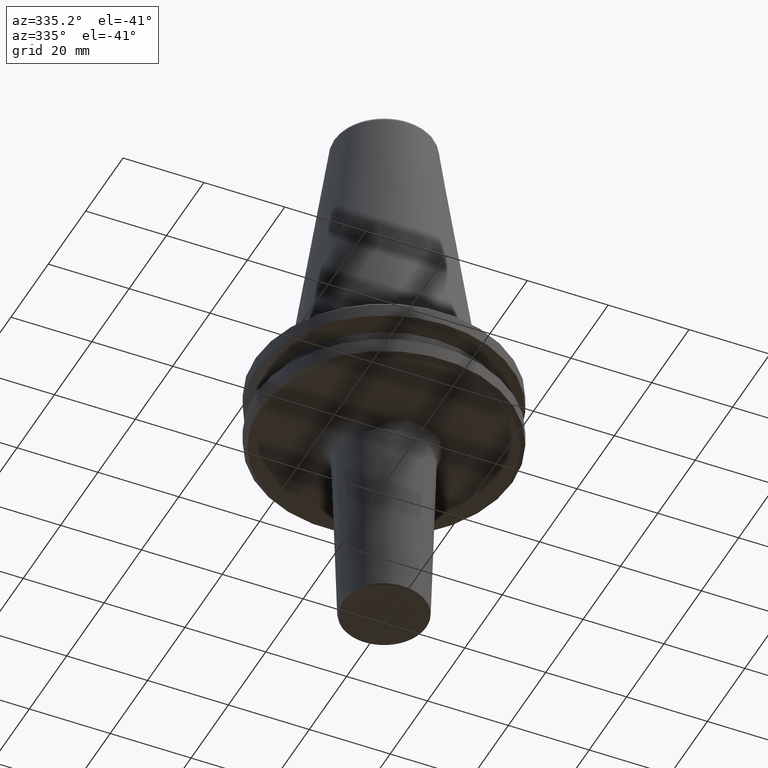
[diagram: clean part render]
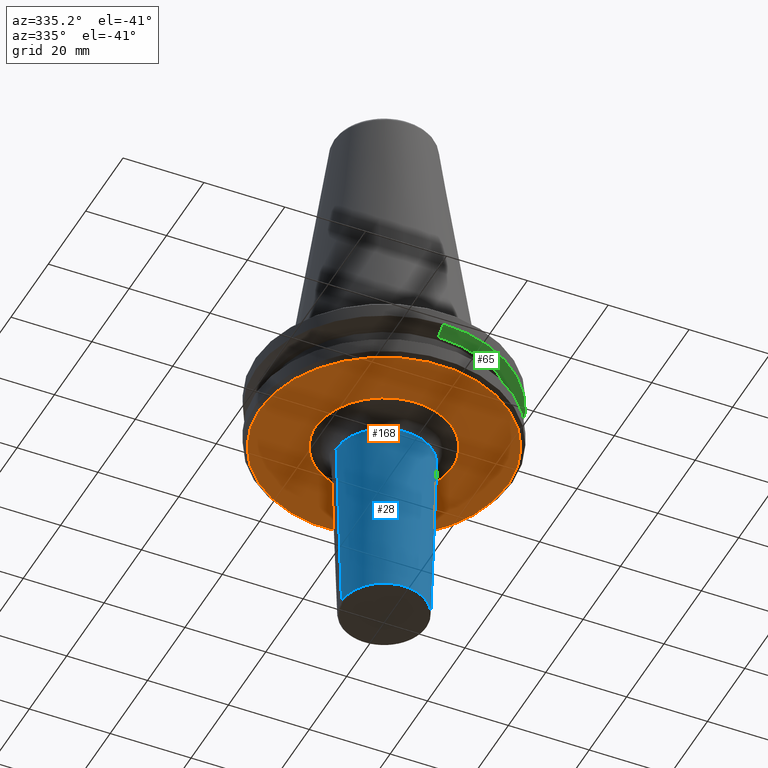
[diagram: same view with three faces highlighted in distinct colors, each labeled with its STEP entity id]
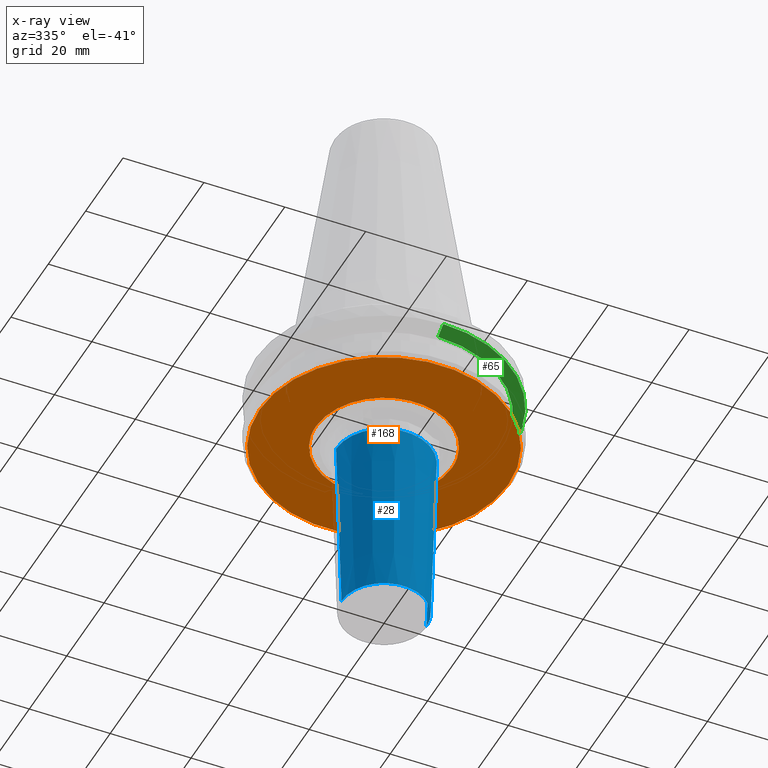
[diagram: x-ray of the same camera — body ghosted, the three highlighted faces saturated]
A machine part, auxiliary view with three faces highlighted in distinct colors.
The next image is the same camera in x-ray (body ghosted, the three faces saturated) — at least one of them is partly hidden behind the body in this view.
Their STEP definitions:

[orange] entity #168 — the highlighted planar face has unit normal (0, 0, -1).
#2 = CARTESIAN_POINT ( 'NONE',  ( -5.756851245257653500, 15.83952898316190900, -19.10000000000000100 ) ) ;
#7 = CARTESIAN_POINT ( 'NONE',  ( -5.307316266697082300, 15.99889640963695700, -19.10000000000000100 ) ) ;
#9 = CARTESIAN_POINT ( 'NONE',  ( -4.398759286971055000, 16.28421987078366900, -19.10000000000001200 ) ) ;
#10 = CARTESIAN_POINT ( 'NONE',  ( -3.603732694168920100, 16.47150616581784600, -19.10000000000000500 ) ) ;
#21 = CARTESIAN_POINT ( 'NONE',  ( -3.032908886920591100, 16.57711997429286700, -19.10000000000000500 ) ) ;
#25 = CARTESIAN_POINT ( 'NONE',  ( -3.003109251472878300, 16.58254039698522700, -19.10000000000000100 ) ) ;
#36 = CARTESIAN_POINT ( 'NONE',  ( -2.939707571947320500, 16.59389855350475100, -19.10000000000000500 ) ) ;
#41 = CARTESIAN_POINT ( 'NONE',  ( -2.844580879595744300, 16.61066094514205100, -19.10000000000000100 ) ) ;
#53 = CARTESIAN_POINT ( 'NONE',  ( -2.622449385999404500, 16.64784929030205200, -19.10000000000000500 ) ) ;
#57 = CARTESIAN_POINT ( 'NONE',  ( -2.177509553036062000, 16.71453037264713300, -19.10000000000000900 ) ) ;
#58 = CARTESIAN_POINT ( 'NONE',  ( -1.284922504026729600, 16.81711010543762400, -19.10000000000000500 ) ) ;
#60 = CARTESIAN_POINT ( 'NONE',  ( -0.5152066624484736800, 16.85226570743007500, -19.10000000000000500 ) ) ;
#63 = CARTESIAN_POINT ( 'NONE',  ( 1.030413324896954300, 16.85221706707289300, -19.10000000000000500 ) ) ;
#73 = CARTESIAN_POINT ( 'NONE',  ( 2.053281699854323500, 16.75843634596672200, -19.10000000000000900 ) ) ;
#78 = CARTESIAN_POINT ( 'NONE',  ( 3.098149416000228800, 16.56504711767866300, -19.10000000000000500 ) ) ;
#81 = CARTESIAN_POINT ( 'NONE',  ( 3.133655645369320700, 16.55837085459608100, -19.10000000000000900 ) ) ;
#84 = CARTESIAN_POINT ( 'NONE',  ( 3.200737856740124800, 16.54553656492364800, -19.10000000000000500 ) ) ;
#85 = CARTESIAN_POINT ( 'NONE',  ( 3.301274497733011100, 16.52598738347024100, -19.10000000000000500 ) ) ;
#90 = CARTESIAN_POINT ( 'NONE',  ( 3.535253260939868800, 16.47828839813239900, -19.10000000000000500 ) ) ;
#92 = CARTESIAN_POINT ( 'NONE',  ( 4.000783857580722200, 16.37455351300366100, -19.10000000000000900 ) ) ;
#98 = CARTESIAN_POINT ( 'NONE',  ( 4.922137331770981600, 16.13373608493400700, -19.10000000000000900 ) ) ;
#102 = CARTESIAN_POINT ( 'NONE',  ( -16.37455351300720700, 4.000783857569661700, -19.10000000000000900 ) ) ;
#104 = CARTESIAN_POINT ( 'NONE',  ( 5.695227076920157400, 15.87015373319630700, -19.10000000000000500 ) ) ;
#106 = CARTESIAN_POINT ( 'NONE',  ( 6.234973683326794400, 15.65645384439129700, -19.10000000000000500 ) ) ;
#108 = CARTESIAN_POINT ( 'NONE',  ( -16.85224949397768400, 1.030944126964920700, -19.10000000000000500 ) ) ;
#112 = CARTESIAN_POINT ( 'NONE',  ( 6.269379510449287100, 15.64271166299225500, -19.10000000000000500 ) ) ;
#115 = CARTESIAN_POINT ( 'NONE',  ( 6.335379405098112000, 15.61610053222299800, -19.09999999999999800 ) ) ;
#119 = VERTEX_POINT ( 'NONE', #1488 ) ;
#121 = CARTESIAN_POINT ( 'NONE',  ( 6.434223514220820000, 15.57588546839331800, -19.10000000000000100 ) ) ;
#127 = CARTESIAN_POINT ( 'NONE',  ( 6.663769638886750000, 15.47996174572681700, -19.10000000000000100 ) ) ;
#128 = CARTESIAN_POINT ( 'NONE',  ( 7.118501368403774300, 15.27976000547149700, -19.10000000000000500 ) ) ;
#131 = CARTESIAN_POINT ( 'NONE',  ( -9.160872412643689300, 14.14503220573418200, -19.10000000000000900 ) ) ;
#133 = CARTESIAN_POINT ( 'NONE',  ( 8.010522748178427600, 14.84593934527155700, -19.10000000000000500 ) ) ;
#136 = CARTESIAN_POINT ( 'NONE',  ( 8.745211794969170800, 14.41680647134711200, -19.10000000000000900 ) ) ;
#139 = CARTESIAN_POINT ( 'NONE',  ( 9.281278226411329200, 14.06631351902723500, -19.10000000000000500 ) ) ;
#157 = CARTESIAN_POINT ( 'NONE',  ( 9.343174503052640700, 14.02528813480012100, -19.10000000000000500 ) ) ;
#162 = CARTESIAN_POINT ( 'NONE',  ( 9.463745020886250400, 13.94423174972567900, -19.10000000000000500 ) ) ;
#165 = CARTESIAN_POINT ( 'NONE',  ( -16.47828839813446700, 3.535253260933419700, -19.10000000000000900 ) ) ;
#167 = CARTESIAN_POINT ( 'NONE',  ( 9.643712102002062600, 13.82155983263558800, -19.10000000000000500 ) ) ;
#168 = ADVANCED_FACE ( 'NONE', ( #547, #280 ), #500, .T. ) ;
#169 = CARTESIAN_POINT ( 'NONE',  ( -5.980432856712331700, 15.75566884594895000, -19.10000000000000500 ) ) ;
#175 = CARTESIAN_POINT ( 'NONE',  ( 10.05741442183003400, 13.52771398307630000, -19.10000000000000500 ) ) ;
#184 = CARTESIAN_POINT ( 'NONE',  ( 10.85993558371700400, 12.90957677856141200, -19.10000000000000900 ) ) ;
#185 = DIRECTION ( 'NONE',  ( -1.000000000000000000, 0.0000000000000000000, -0.0000000000000000000 ) ) ;
#189 = CARTESIAN_POINT ( 'NONE',  ( 11.50515347487327300, 12.32755259401210200, -19.10000000000000100 ) ) ;
#192 = DIRECTION ( 'NONE',  ( 0.0000000000000000000, 0.0000000000000000000, -1.000000000000000000 ) ) ;
#193 = CARTESIAN_POINT ( 'NONE',  ( 12.73871273657100500, 11.09391449829334800, -19.10000000000000900 ) ) ;
#195 = CARTESIAN_POINT ( 'NONE',  ( -12.90957677853942300, 10.85993558374389400, -19.10000000000000500 ) ) ;
#197 = CARTESIAN_POINT ( 'NONE',  ( -13.94423174971988500, 9.463745020893332700, -19.10000000000000100 ) ) ;
#199 = CARTESIAN_POINT ( 'NONE',  ( 13.46885677499800600, 10.19520132063058600, -19.10000000000000500 ) ) ;
#209 = CARTESIAN_POINT ( 'NONE',  ( 14.14503220573349100, 9.160872412644034000, -19.10000000000000100 ) ) ;
#214 = CARTESIAN_POINT ( 'NONE',  ( 14.18278571764009800, 9.102306124253871600, -19.09999999999999800 ) ) ;
#218 = CARTESIAN_POINT ( 'NONE',  ( 14.25911700630278000, 8.982281348283406100, -19.10000000000000100 ) ) ;
#225 = CARTESIAN_POINT ( 'NONE',  ( 14.37241669071548600, 8.801628573687775500, -19.10000000000000500 ) ) ;
#227 = CARTESIAN_POINT ( 'NONE',  ( 14.62840188094256900, 8.375796158485167500, -19.10000000000000500 ) ) ;
#236 = CARTESIAN_POINT ( 'NONE',  ( -10.19520132063604100, 13.46885677498691800, -19.09999999999999800 ) ) ;
#239 = CARTESIAN_POINT ( 'NONE',  ( 15.10684930111993100, 7.506894230162042300, -19.10000000000000900 ) ) ;
#241 = CARTESIAN_POINT ( 'NONE',  ( 15.45947915794023700, 6.732571838025815900, -19.10000000000000100 ) ) ;
#242 = CARTESIAN_POINT ( 'NONE',  ( 15.68212100534480400, 6.170139635757690800, -19.10000000000000500 ) ) ;
#248 = CARTESIAN_POINT ( 'NONE',  ( 15.69407829061654900, 6.139654009584256200, -19.10000000000000500 ) ) ;
#250 = CARTESIAN_POINT ( 'NONE',  ( 15.71883383914912700, 6.075999430659587500, -19.10000000000000500 ) ) ;
#252 = CARTESIAN_POINT ( 'NONE',  ( 15.75566884594973700, 5.980432856713596500, -19.10000000000000900 ) ) ;
#254 = CARTESIAN_POINT ( 'NONE',  ( 15.83952898316339000, 5.756851245260016900, -19.10000000000000500 ) ) ;
#263 = CARTESIAN_POINT ( 'NONE',  ( 15.99889640963949400, 5.307316266701131500, -19.10000000000000900 ) ) ;
#266 = CARTESIAN_POINT ( 'NONE',  ( 16.28421987078704400, 4.398759286976441800, -19.10000000000000500 ) ) ;
#269 = CARTESIAN_POINT ( 'NONE',  ( 16.47150616581978300, 3.603732694171999800, -19.10000000000000500 ) ) ;
#270 = CARTESIAN_POINT ( 'NONE',  ( 16.57711997429274900, 3.032908886920399300, -19.10000000000000100 ) ) ;
#275 = CARTESIAN_POINT ( 'NONE',  ( 16.58253840197058100, 3.003120034169848700, -19.10000000000000100 ) ) ;
#280 = FACE_OUTER_BOUND ( 'NONE', #1441, .T. ) ;
#282 = CARTESIAN_POINT ( 'NONE',  ( 16.59389465847613800, 2.939728623879499700, -19.10000000000000500 ) ) ;
#285 = CARTESIAN_POINT ( 'NONE',  ( 16.61065429509322700, 2.844616821918979400, -19.10000000000000100 ) ) ;
#289 = CARTESIAN_POINT ( 'NONE',  ( 16.64783687687757000, 2.622516478336105000, -19.10000000000000100 ) ) ;
#292 = CARTESIAN_POINT ( 'NONE',  ( 16.71450909249086800, 2.177624568470404800, -19.10000000000000500 ) ) ;
#296 = CARTESIAN_POINT ( 'NONE',  ( 16.81708173189594300, 1.285075857939183900, -19.10000000000000500 ) ) ;
#317 = CARTESIAN_POINT ( 'NONE',  ( 16.85224949397768400, 0.0000000000000000000, -19.10000000000000500 ) ) ;
#331 = CARTESIAN_POINT ( 'NONE',  ( 16.85224949397768100, 0.5152942932555905100, -19.10000000000000100 ) ) ;
#345 = CARTESIAN_POINT ( 'NONE',  ( 16.85224949397768400, 0.0000000000000000000, -19.10000000000000500 ) ) ;
#373 = CARTESIAN_POINT ( 'NONE',  ( -14.41680647134501700, 8.745211794976144800, -19.10000000000000900 ) ) ;
#375 = CIRCLE ( 'NONE', #1341, 30.75000000000049700 ) ;
#412 = ORIENTED_EDGE ( 'NONE', *, *, #810, .T. ) ;
#458 = CARTESIAN_POINT ( 'NONE',  ( -14.84593934526788800, 8.010522748190627600, -19.10000000000000500 ) ) ;
#464 = CARTESIAN_POINT ( 'NONE',  ( -14.06631351902750100, 9.281278226410451600, -19.10000000000000500 ) ) ;
#500 = PLANE ( 'NONE',  #1054 ) ;
#514 = CARTESIAN_POINT ( 'NONE',  ( -15.61610053222249500, 6.335379405099785400, -19.10000000000000500 ) ) ;
#530 = CARTESIAN_POINT ( 'NONE',  ( -14.02528813479707100, 9.343174503056358700, -19.10000000000000900 ) ) ;
#543 = VERTEX_POINT ( 'NONE', #1372 ) ;
#547 = FACE_BOUND ( 'NONE', #1191, .T. ) ;
#558 = CARTESIAN_POINT ( 'NONE',  ( -8.982281348284111300, 14.25911700630401000, -19.10000000000000500 ) ) ;
#574 = CARTESIAN_POINT ( 'NONE',  ( -11.09391449831847600, 12.73871273654024900, -19.10000000000000500 ) ) ;
#577 = B_SPLINE_CURVE_WITH_KNOTS ( 'NONE', 3,
 ( #317, #331, #296, #292, #289, #285, #282, #275, #270, #269, #266, #263, #254, #252, #250, #248, #242, #241, #239, #227, #225, #218, #214, #209, #199, #193, #189, #184, #175, #167, #162, #157, #139, #136, #133, #128, #127, #121, #115, #112, #106, #104, #98, #92, #90, #85, #84, #81, #78, #73, #63, #60, #58, #57, #53, #41, #36, #25, #21, #10, #9, #7, #2, #169, #1131, #685, #1221, #798, #1101, #599, #1161, #558, #1075, #131, #236, #574, #1386, #195, #885, #620, #197, #530, #464, #373, #458, #1056, #1142, #805, #514, #893, #726, #741, #991, #102, #165, #724, #637, #778, #1165, #1181, #108, #758 ),
 .UNSPECIFIED., .F., .F.,
 ( 4, 1, 1, 1, 1, 2, 2, 1, 1, 1, 1, 2, 2, 1, 1, 1, 2, 2, 2, 1, 1, 1, 2, 2, 1, 1, 1, 1, 2, 2, 1, 1, 1, 1, 2, 2, 2, 1, 1, 1, 1, 2, 2, 1, 1, 1, 1, 2, 2, 1, 1, 1, 2, 2, 2, 1, 1, 1, 2, 2, 1, 1, 1, 1, 2, 2, 1, 1, 1, 1, 2, 2, 4 ),
 ( 0.0000000000000000000, 0.03124999999999777300, 0.04687499999999665500, 0.05468749999999610000, 0.05859374999999583700, 0.06054687499999571900, 0.06249999999999560100, 0.09374999999999453200, 0.1093749999999940300, 0.1171874999999937800, 0.1210937499999936300, 0.1230468749999935700, 0.1249999999999935300, 0.1562499999999927600, 0.1718749999999923400, 0.1796874999999921700, 0.1835937499999920900, 0.1874999999999919800, 0.2499999999999908400, 0.2812499999999902900, 0.2968749999999899500, 0.3046874999999897900, 0.3085937499999897300, 0.3124999999999896700, 0.3437499999999898400, 0.3593749999999899000, 0.3671874999999899500, 0.3710937499999899500, 0.3730468749999899000, 0.3749999999999898400, 0.4062499999999899000, 0.4218749999999899500, 0.4296874999999899500, 0.4335937499999899500, 0.4355468749999900100, 0.4374999999999900100, 0.4999999999999901200, 0.5312499999999902300, 0.5468749999999902300, 0.5546874999999902300, 0.5585937499999902300, 0.5605468749999902300, 0.5624999999999902300, 0.5937499999999910100, 0.6093749999999913400, 0.6171874999999915600, 0.6210937499999915600, 0.6230468749999916700, 0.6249999999999917800, 0.6562499999999925600, 0.6718749999999928900, 0.6796874999999930100, 0.6835937499999930100, 0.6874999999999931200, 0.7499999999999950000, 0.7812499999999960000, 0.7968749999999965600, 0.8046874999999967800, 0.8085937499999970000, 0.8124999999999971100, 0.8437499999999980000, 0.8593749999999984500, 0.8671874999999986700, 0.8710937499999987800, 0.8730468749999988900, 0.8749999999999988900, 0.9062499999999993300, 0.9218749999999995600, 0.9296874999999996700, 0.9335937499999997800, 0.9355468749999996700, 0.9374999999999996700, 1.000000000000000000 ),
 .UNSPECIFIED. ) ;
#582 = CARTESIAN_POINT ( 'NONE',  ( 30.75000000000049700, 0.0000000000000000000, -19.10000000000006200 ) ) ;
#599 = CARTESIAN_POINT ( 'NONE',  ( -8.375796158487180100, 14.62840188094607500, -19.10000000000000500 ) ) ;
#607 = DIRECTION ( 'NONE',  ( 1.000000000000000000, 0.0000000000000000000, 0.0000000000000000000 ) ) ;
#610 = DIRECTION ( 'NONE',  ( -0.0000000000000000000, -0.0000000000000000000, 1.000000000000000000 ) ) ;
#615 = CARTESIAN_POINT ( 'NONE',  ( 0.0000000000000000000, 0.0000000000000000000, -19.10000000000006200 ) ) ;
#620 = CARTESIAN_POINT ( 'NONE',  ( -13.82155983262596900, 9.643712102013825700, -19.10000000000000500 ) ) ;
#626 = CARTESIAN_POINT ( 'NONE',  ( 0.0000000000000000000, 2.166680460328873200E-015, -19.10000000000000500 ) ) ;
#637 = CARTESIAN_POINT ( 'NONE',  ( -16.54553656492430100, 3.200737856738102800, -19.10000000000000900 ) ) ;
#685 = CARTESIAN_POINT ( 'NONE',  ( -6.139654009583874300, 15.69407829061630900, -19.10000000000000100 ) ) ;
#724 = CARTESIAN_POINT ( 'NONE',  ( -16.52598738347134600, 3.301274497729562700, -19.10000000000000100 ) ) ;
#726 = CARTESIAN_POINT ( 'NONE',  ( -15.65645384439113400, 6.234973683327321000, -19.10000000000000500 ) ) ;
#741 = CARTESIAN_POINT ( 'NONE',  ( -15.87015373319900600, 5.695227076911727700, -19.10000000000000100 ) ) ;
#758 = CARTESIAN_POINT ( 'NONE',  ( -16.85224949397768400, 2.063805340123238200E-015, -19.10000000000000500 ) ) ;
#778 = CARTESIAN_POINT ( 'NONE',  ( -16.55837085459641500, 3.133655645368287800, -19.10000000000000500 ) ) ;
#785 = CARTESIAN_POINT ( 'NONE',  ( -14.14503220573338300, -9.160872412644373200, -19.10000000000000100 ) ) ;
#790 = CARTESIAN_POINT ( 'NONE',  ( -12.73871273656208200, -11.09391449829852200, -19.10000000000000900 ) ) ;
#793 = CARTESIAN_POINT ( 'NONE',  ( -8.745211794966101200, -14.41680647134879400, -19.10000000000000900 ) ) ;
#798 = CARTESIAN_POINT ( 'NONE',  ( -6.732571838027357800, 15.45947915794290500, -19.10000000000000100 ) ) ;
#800 = CARTESIAN_POINT ( 'NONE',  ( -9.343174503053715400, -14.02528813479948900, -19.10000000000000500 ) ) ;
#805 = CARTESIAN_POINT ( 'NONE',  ( -15.57588546839246600, 6.434223514223679000, -19.10000000000000500 ) ) ;
#806 = CARTESIAN_POINT ( 'NONE',  ( 16.85224949397768400, 0.0000000000000000000, -19.10000000000000500 ) ) ;
#807 = CARTESIAN_POINT ( 'NONE',  ( -8.010522748173050500, -14.84593934527451300, -19.10000000000000500 ) ) ;
#810 = EDGE_CURVE ( 'NONE', #1381, #119, #577, .T. ) ;
#821 = CARTESIAN_POINT ( 'NONE',  ( 16.85224949397768400, -1.030944126964913600, -19.10000000000000500 ) ) ;
#830 = CARTESIAN_POINT ( 'NONE',  ( 16.75846879509304100, -2.053106379609965300, -19.10000000000000500 ) ) ;
#847 = VERTEX_POINT ( 'NONE', #582 ) ;
#854 = CARTESIAN_POINT ( 'NONE',  ( 16.56504610364346400, -3.098154894757869200, -19.10000000000000500 ) ) ;
#857 = CARTESIAN_POINT ( 'NONE',  ( 3.032908886920465900, -16.57711997429271000, -19.10000000000000500 ) ) ;
#864 = CARTESIAN_POINT ( 'NONE',  ( 16.55837085459656800, -3.133655645367427100, -19.10000000000000100 ) ) ;
#872 = CARTESIAN_POINT ( 'NONE',  ( 2.622449385987796000, -16.64784929030204800, -19.10000000000000100 ) ) ;
#874 = CARTESIAN_POINT ( 'NONE',  ( 16.54553656492461400, -3.200737856736423300, -19.10000000000000900 ) ) ;
#877 = CARTESIAN_POINT ( 'NONE',  ( 16.52598738347189000, -3.301274497726693500, -19.10000000000000900 ) ) ;
#881 = CARTESIAN_POINT ( 'NONE',  ( 16.47828839813546200, -3.535253260928067600, -19.10000000000000900 ) ) ;
#885 = CARTESIAN_POINT ( 'NONE',  ( -13.52771398305981300, 10.05741442185020800, -19.10000000000000500 ) ) ;
#892 = CARTESIAN_POINT ( 'NONE',  ( 16.37455351300890500, -4.000783857560493000, -19.10000000000000500 ) ) ;
#893 = CARTESIAN_POINT ( 'NONE',  ( -15.64271166299199800, 6.269379510450145100, -19.10000000000000100 ) ) ;
#901 = CARTESIAN_POINT ( 'NONE',  ( 16.13373608494099900, -4.922137331744004000, -19.10000000000000500 ) ) ;
#912 = CARTESIAN_POINT ( 'NONE',  ( 15.87015373320030100, -5.695227076904743100, -19.10000000000000900 ) ) ;
#914 = CARTESIAN_POINT ( 'NONE',  ( 15.65645384439104300, -6.234973683327764200, -19.10000000000000100 ) ) ;
#918 = CARTESIAN_POINT ( 'NONE',  ( -5.695227076921097100, -15.87015373319548500, -19.10000000000001200 ) ) ;
#919 = EDGE_CURVE ( 'NONE', #119, #1381, #1041, .T. ) ;
#923 = CARTESIAN_POINT ( 'NONE',  ( -14.37241669071427500, -8.801628573690665600, -19.10000000000000500 ) ) ;
#929 = CARTESIAN_POINT ( 'NONE',  ( -14.25911700630206300, -8.982281348285143400, -19.10000000000000900 ) ) ;
#931 = CARTESIAN_POINT ( 'NONE',  ( 15.64271166299235300, -6.269379510449710800, -19.10000000000000500 ) ) ;
#934 = DIRECTION ( 'NONE',  ( 1.000000000000000000, 0.0000000000000000000, 0.0000000000000000000 ) ) ;
#936 = CARTESIAN_POINT ( 'NONE',  ( -14.18278571763972600, -9.102306124254784700, -19.10000000000001200 ) ) ;
#940 = CARTESIAN_POINT ( 'NONE',  ( -13.46885677499980400, -10.19520132062504200, -19.10000000000000100 ) ) ;
#946 = CARTESIAN_POINT ( 'NONE',  ( -11.50515347487774400, -12.32755259400950700, -19.10000000000000500 ) ) ;
#960 = CARTESIAN_POINT ( 'NONE',  ( 15.61610053222319600, -6.335379405098930100, -19.10000000000000500 ) ) ;
#961 = DIRECTION ( 'NONE',  ( -0.0000000000000000000, -0.0000000000000000000, 1.000000000000000000 ) ) ;
#964 = CARTESIAN_POINT ( 'NONE',  ( 0.0000000000000000000, 0.0000000000000000000, -19.10000000000006200 ) ) ;
#965 = CARTESIAN_POINT ( 'NONE',  ( -15.45947915793865900, -6.732571838029594200, -19.10000000000000500 ) ) ;
#969 = CARTESIAN_POINT ( 'NONE',  ( 11.09391449831849900, -12.73871273654210000, -19.10000000000000100 ) ) ;
#976 = CARTESIAN_POINT ( 'NONE',  ( -16.59389465847613800, -2.939728623881110900, -19.10000000000000100 ) ) ;
#979 = CARTESIAN_POINT ( 'NONE',  ( 12.32755259399951300, -11.50515347488773400, -19.10000000000000100 ) ) ;
#991 = CARTESIAN_POINT ( 'NONE',  ( -16.13373608493874300, 4.922137331756232500, -19.10000000000000500 ) ) ;
#997 = ORIENTED_EDGE ( 'NONE', *, *, #1274, .F. ) ;
#1002 = CARTESIAN_POINT ( 'NONE',  ( -15.75566884594870100, -5.980432856716303600, -19.10000000000000900 ) ) ;
#1008 = CARTESIAN_POINT ( 'NONE',  ( -14.62840188094051000, -8.375796158490118200, -19.10000000000000500 ) ) ;
#1012 = CARTESIAN_POINT ( 'NONE',  ( -15.71883383914853400, -6.075999430661172000, -19.10000000000000900 ) ) ;
#1013 = CARTESIAN_POINT ( 'NONE',  ( 15.57588546839365800, -6.434223514222211700, -19.10000000000000500 ) ) ;
#1031 = CARTESIAN_POINT ( 'NONE',  ( 10.19520132063598800, -13.46885677498885800, -19.10000000000001200 ) ) ;
#1040 = CARTESIAN_POINT ( 'NONE',  ( -15.69407829061624300, -6.139654009585064500, -19.10000000000000100 ) ) ;
#1041 = B_SPLINE_CURVE_WITH_KNOTS ( 'NONE', 3,
 ( #1245, #1083, #1100, #1092, #1105, #1288, #976, #1265, #1451, #1509, #1282, #1200, #1069, #1002, #1012, #1040, #1050, #965, #1130, #1008, #923, #929, #936, #785, #940, #790, #946, #1260, #1280, #1283, #1315, #800, #1317, #793, #807, #1322, #1337, #1348, #1352, #1393, #1396, #918, #1402, #1413, #1433, #1448, #1453, #1459, #1461, #1465, #1480, #1501, #1511, #1515, #872, #1196, #1204, #1219, #857, #1223, #1160, #1141, #1128, #1124, #1110, #1107, #1102, #1098, #1090, #1085, #1081, #1078, #1055, #1046, #1031, #969, #979, #1492, #1475, #1471, #1423, #1377, #1345, #1343, #1272, #1194, #1187, #1013, #960, #931, #914, #912, #901, #892, #881, #877, #874, #864, #854, #830, #821, #806 ),
 .UNSPECIFIED., .F., .F.,
 ( 4, 1, 1, 1, 1, 2, 2, 1, 1, 1, 1, 2, 2, 1, 1, 1, 2, 2, 2, 1, 1, 1, 2, 2, 1, 1, 1, 1, 2, 2, 1, 1, 1, 1, 2, 2, 2, 1, 1, 1, 1, 2, 2, 1, 1, 1, 1, 2, 2, 1, 1, 1, 2, 2, 2, 1, 1, 1, 2, 2, 1, 1, 1, 1, 2, 2, 1, 1, 1, 1, 2, 2, 4 ),
 ( 0.0000000000000000000, 0.03125000000000094400, 0.04687500000000140200, 0.05468750000000161700, 0.05859375000000172800, 0.06054687500000177600, 0.06250000000000183200, 0.09375000000000235900, 0.1093750000000026000, 0.1171875000000026500, 0.1210937500000026900, 0.1230468750000027500, 0.1250000000000027800, 0.1562500000000034700, 0.1718750000000037700, 0.1796875000000038600, 0.1835937500000039700, 0.1875000000000040500, 0.2500000000000049400, 0.2812500000000053800, 0.2968750000000055500, 0.3046875000000056600, 0.3085937500000056600, 0.3125000000000056600, 0.3437500000000056600, 0.3593750000000057200, 0.3671875000000057700, 0.3710937500000057700, 0.3730468750000057700, 0.3750000000000057700, 0.4062500000000055000, 0.4218750000000053300, 0.4296875000000052700, 0.4335937500000052700, 0.4355468750000052200, 0.4375000000000051600, 0.5000000000000047700, 0.5312500000000045500, 0.5468750000000045500, 0.5546875000000045500, 0.5585937500000045500, 0.5605468750000044400, 0.5625000000000044400, 0.5937500000000036600, 0.6093750000000033300, 0.6171875000000031100, 0.6210937500000030000, 0.6230468750000028900, 0.6250000000000028900, 0.6562500000000022200, 0.6718750000000020000, 0.6796875000000018900, 0.6835937500000018900, 0.6875000000000018900, 0.7500000000000013300, 0.7812500000000010000, 0.7968750000000010000, 0.8046875000000008900, 0.8085937500000008900, 0.8125000000000008900, 0.8437500000000010000, 0.8593750000000012200, 0.8671875000000012200, 0.8710937500000012200, 0.8730468750000011100, 0.8750000000000011100, 0.9062500000000010000, 0.9218750000000011100, 0.9296875000000011100, 0.9335937500000011100, 0.9355468750000010000, 0.9375000000000010000, 1.000000000000000000 ),
 .UNSPECIFIED. ) ;
#1046 = CARTESIAN_POINT ( 'NONE',  ( 9.160872412643691100, -14.14503220573406300, -19.10000000000000100 ) ) ;
#1050 = CARTESIAN_POINT ( 'NONE',  ( -15.68212100534489800, -6.170139635757451800, -19.09999999999999800 ) ) ;
#1054 = AXIS2_PLACEMENT_3D ( 'NONE', #626, #192, #185 ) ;
#1055 = CARTESIAN_POINT ( 'NONE',  ( 9.102306124256708500, -14.18278571763891800, -19.10000000000000100 ) ) ;
#1056 = CARTESIAN_POINT ( 'NONE',  ( -15.27976000546874100, 7.118501368412928800, -19.10000000000000500 ) ) ;
#1069 = CARTESIAN_POINT ( 'NONE',  ( -15.83952898316144700, -5.756851245265068900, -19.10000000000000900 ) ) ;
#1075 = CARTESIAN_POINT ( 'NONE',  ( -9.102306124254244700, 14.18278571764074800, -19.10000000000000900 ) ) ;
#1078 = CARTESIAN_POINT ( 'NONE',  ( 8.982281348288799100, -14.25911700630051700, -19.10000000000000900 ) ) ;
#1081 = CARTESIAN_POINT ( 'NONE',  ( 8.801628573696733700, -14.37241669071172500, -19.10000000000000100 ) ) ;
#1083 = CARTESIAN_POINT ( 'NONE',  ( -16.85224949397768400, -0.5152942932622866000, -19.10000000000000500 ) ) ;
#1085 = CARTESIAN_POINT ( 'NONE',  ( 8.375796158500525800, -14.62840188093614000, -19.10000000000001200 ) ) ;
#1089 = CIRCLE ( 'NONE', #1301, 30.75000000000049700 ) ;
#1090 = CARTESIAN_POINT ( 'NONE',  ( 7.506894230182519200, -15.10684930111135300, -19.10000000000000500 ) ) ;
#1092 = CARTESIAN_POINT ( 'NONE',  ( -16.71450909249086400, -2.177624568479195900, -19.10000000000001200 ) ) ;
#1098 = CARTESIAN_POINT ( 'NONE',  ( 6.732571838037515900, -15.45947915793533100, -19.10000000000000900 ) ) ;
#1100 = CARTESIAN_POINT ( 'NONE',  ( -16.81708173189594300, -1.285075857950903400, -19.10000000000000500 ) ) ;
#1101 = CARTESIAN_POINT ( 'NONE',  ( -7.506894230164739700, 15.10684930112459100, -19.10000000000000500 ) ) ;
#1102 = CARTESIAN_POINT ( 'NONE',  ( 6.170139635756962400, -15.68212100534510600, -19.10000000000000500 ) ) ;
#1105 = CARTESIAN_POINT ( 'NONE',  ( -16.64783687687755900, -2.622516478341233800, -19.10000000000000500 ) ) ;
#1107 = CARTESIAN_POINT ( 'NONE',  ( 6.139654009584132800, -15.69407829061662500, -19.10000000000000500 ) ) ;
#1110 = CARTESIAN_POINT ( 'NONE',  ( 6.075999430659340600, -15.71883383914929100, -19.10000000000000900 ) ) ;
#1124 = CARTESIAN_POINT ( 'NONE',  ( 5.980432856713168400, -15.75566884595001200, -19.10000000000000500 ) ) ;
#1128 = CARTESIAN_POINT ( 'NONE',  ( 5.756851245259216700, -15.83952898316389300, -19.10000000000000900 ) ) ;
#1130 = CARTESIAN_POINT ( 'NONE',  ( -15.10684930111716900, -7.506894230168648500, -19.10000000000000500 ) ) ;
#1131 = CARTESIAN_POINT ( 'NONE',  ( -6.075999430658845800, 15.71883383914866500, -19.10000000000000500 ) ) ;
#1141 = CARTESIAN_POINT ( 'NONE',  ( 5.307316266699755800, -15.99889640964037200, -19.10000000000000500 ) ) ;
#1142 = CARTESIAN_POINT ( 'NONE',  ( -15.47996174572520700, 6.663769638892094200, -19.10000000000000500 ) ) ;
#1160 = CARTESIAN_POINT ( 'NONE',  ( 4.398759286974614800, -16.28421987078821000, -19.10000000000000500 ) ) ;
#1161 = CARTESIAN_POINT ( 'NONE',  ( -8.801628573688946100, 14.37241669071751800, -19.10000000000000500 ) ) ;
#1165 = CARTESIAN_POINT ( 'NONE',  ( -16.56504610364346100, 3.098154894757869200, -19.10000000000000100 ) ) ;
#1181 = CARTESIAN_POINT ( 'NONE',  ( -16.75846879509303700, 2.053106379609972000, -19.10000000000000100 ) ) ;
#1187 = CARTESIAN_POINT ( 'NONE',  ( 15.47996174572746700, -6.663769638889346100, -19.10000000000000500 ) ) ;
#1191 = EDGE_LOOP ( 'NONE', ( #412, #1331 ) ) ;
#1194 = CARTESIAN_POINT ( 'NONE',  ( 15.27976000547261600, -7.118501368408218800, -19.10000000000000500 ) ) ;
#1196 = CARTESIAN_POINT ( 'NONE',  ( 2.844580879589525300, -16.61066094514205800, -19.10000000000000900 ) ) ;
#1200 = CARTESIAN_POINT ( 'NONE',  ( -15.99889640963616300, -5.307316266709791300, -19.10000000000000500 ) ) ;
#1204 = CARTESIAN_POINT ( 'NONE',  ( 2.939707571943680700, -16.59389855350474700, -19.10000000000000500 ) ) ;
#1219 = CARTESIAN_POINT ( 'NONE',  ( 3.003109251471014900, -16.58254039698523000, -19.10000000000000900 ) ) ;
#1221 = CARTESIAN_POINT ( 'NONE',  ( -6.170139635757591300, 15.68212100534463900, -19.10000000000000100 ) ) ;
#1223 = CARTESIAN_POINT ( 'NONE',  ( 3.603732694170958400, -16.47150616582044300, -19.10000000000000900 ) ) ;
#1225 = EDGE_CURVE ( 'NONE', #543, #847, #1089, .T. ) ;
#1245 = CARTESIAN_POINT ( 'NONE',  ( -16.85224949397768400, 2.063805340123238200E-015, -19.10000000000000500 ) ) ;
#1260 = CARTESIAN_POINT ( 'NONE',  ( -10.85993558372481400, -12.90957677855687200, -19.10000000000000500 ) ) ;
#1265 = CARTESIAN_POINT ( 'NONE',  ( -16.58253840197058400, -3.003120034170675200, -19.10000000000000500 ) ) ;
#1272 = CARTESIAN_POINT ( 'NONE',  ( 14.84593934527305900, -8.010522748184342800, -19.10000000000000900 ) ) ;
#1274 = EDGE_CURVE ( 'NONE', #847, #543, #375, .T. ) ;
#1280 = CARTESIAN_POINT ( 'NONE',  ( -10.05741442183589400, -13.52771398307290300, -19.10000000000000900 ) ) ;
#1282 = CARTESIAN_POINT ( 'NONE',  ( -16.28421987078259600, -4.398759286987992600, -19.10000000000000500 ) ) ;
#1283 = CARTESIAN_POINT ( 'NONE',  ( -9.643712102005482100, -13.82155983263360900, -19.10000000000000900 ) ) ;
#1288 = CARTESIAN_POINT ( 'NONE',  ( -16.61065429509322700, -2.844616821921726900, -19.10000000000000500 ) ) ;
#1301 = AXIS2_PLACEMENT_3D ( 'NONE', #964, #961, #934 ) ;
#1315 = CARTESIAN_POINT ( 'NONE',  ( -9.463745020888305600, -13.94423174972449100, -19.10000000000000500 ) ) ;
#1317 = CARTESIAN_POINT ( 'NONE',  ( -9.281278226411709300, -14.06631351902701800, -19.10000000000000500 ) ) ;
#1322 = CARTESIAN_POINT ( 'NONE',  ( -7.118501368399749100, -15.27976000547371000, -19.10000000000000900 ) ) ;
#1331 = ORIENTED_EDGE ( 'NONE', *, *, #919, .T. ) ;
#1337 = CARTESIAN_POINT ( 'NONE',  ( -6.663769638884407000, -15.47996174572810400, -19.10000000000000100 ) ) ;
#1341 = AXIS2_PLACEMENT_3D ( 'NONE', #615, #610, #607 ) ;
#1343 = CARTESIAN_POINT ( 'NONE',  ( 14.41680647134796100, -8.745211794972558300, -19.10000000000000500 ) ) ;
#1345 = CARTESIAN_POINT ( 'NONE',  ( 14.06631351902713000, -9.281278226410904600, -19.10000000000000500 ) ) ;
#1348 = CARTESIAN_POINT ( 'NONE',  ( -6.434223514219566700, -15.57588546839400600, -19.10000000000000100 ) ) ;
#1352 = CARTESIAN_POINT ( 'NONE',  ( -6.335379405097380200, -15.61610053222339900, -19.10000000000000500 ) ) ;
#1372 = CARTESIAN_POINT ( 'NONE',  ( -30.75000000000049700, 3.827021247335512800E-015, -19.10000000000006200 ) ) ;
#1377 = CARTESIAN_POINT ( 'NONE',  ( 14.02528813479706700, -9.343174503056140200, -19.10000000000000500 ) ) ;
#1381 = VERTEX_POINT ( 'NONE', #345 ) ;
#1386 = CARTESIAN_POINT ( 'NONE',  ( -12.32755259399953800, 11.50515347488864400, -19.10000000000000100 ) ) ;
#1393 = CARTESIAN_POINT ( 'NONE',  ( -6.269379510448918500, -15.64271166299245600, -19.10000000000000100 ) ) ;
#1396 = CARTESIAN_POINT ( 'NONE',  ( -6.234973683326743700, -15.65645384439134200, -19.10000000000000100 ) ) ;
#1402 = CARTESIAN_POINT ( 'NONE',  ( -4.922137331772621100, -16.13373608493257200, -19.10000000000000900 ) ) ;
#1413 = CARTESIAN_POINT ( 'NONE',  ( -4.000783857581948800, -16.37455351300257400, -19.10000000000000500 ) ) ;
#1423 = CARTESIAN_POINT ( 'NONE',  ( 13.94423174971988500, -9.463745020892909900, -19.10000000000000500 ) ) ;
#1433 = CARTESIAN_POINT ( 'NONE',  ( -3.535253260940587800, -16.47828839813177400, -19.10000000000000500 ) ) ;
#1441 = EDGE_LOOP ( 'NONE', ( #997, #1514 ) ) ;
#1448 = CARTESIAN_POINT ( 'NONE',  ( -3.301274497733400500, -16.52598738346991100, -19.10000000000000100 ) ) ;
#1451 = CARTESIAN_POINT ( 'NONE',  ( -16.57711997429291600, -3.032908886919989400, -19.10000000000000900 ) ) ;
#1453 = CARTESIAN_POINT ( 'NONE',  ( -3.200737856740352600, -16.54553656492344900, -19.09999999999999800 ) ) ;
#1459 = CARTESIAN_POINT ( 'NONE',  ( -3.133655645369440600, -16.55837085459597100, -19.10000000000000100 ) ) ;
#1461 = CARTESIAN_POINT ( 'NONE',  ( -3.098149416000027600, -16.56504711767866300, -19.10000000000000500 ) ) ;
#1465 = CARTESIAN_POINT ( 'NONE',  ( -2.053281699860939600, -16.75843634596672500, -19.10000000000000900 ) ) ;
#1471 = CARTESIAN_POINT ( 'NONE',  ( 13.82155983262596200, -9.643712102013118700, -19.10000000000000100 ) ) ;
#1475 = CARTESIAN_POINT ( 'NONE',  ( 13.52771398305978900, -10.05741442184900700, -19.10000000000000900 ) ) ;
#1480 = CARTESIAN_POINT ( 'NONE',  ( -1.030413324866632100, -16.85221706707289600, -19.10000000000000100 ) ) ;
#1488 = CARTESIAN_POINT ( 'NONE',  ( -16.85224949397768400, 2.063805340123238200E-015, -19.10000000000000500 ) ) ;
#1492 = CARTESIAN_POINT ( 'NONE',  ( 12.90957677853939400, -10.85993558374228800, -19.10000000000000500 ) ) ;
#1501 = CARTESIAN_POINT ( 'NONE',  ( 0.5152066624333089300, -16.85226570743007500, -19.10000000000001200 ) ) ;
#1509 = CARTESIAN_POINT ( 'NONE',  ( -16.47150616581723500, -3.603732694178599900, -19.10000000000000100 ) ) ;
#1511 = CARTESIAN_POINT ( 'NONE',  ( 1.284922504000194600, -16.81711010543762800, -19.10000000000000500 ) ) ;
#1514 = ORIENTED_EDGE ( 'NONE', *, *, #1225, .F. ) ;
#1515 = CARTESIAN_POINT ( 'NONE',  ( 2.177509553016161000, -16.71453037264713300, -19.10000000000000900 ) ) ;

[blue] entity #28 — the highlighted conical surface has half-angle 1.718 deg.
#4 = CARTESIAN_POINT ( 'NONE',  ( -11.85449797636585200, 1.451757300225521800E-015, -23.95006745447164700 ) ) ;
#28 = ADVANCED_FACE ( 'NONE', ( #794 ), #235, .T. ) ;
#29 = AXIS2_PLACEMENT_3D ( 'NONE', #1037, #1028, #1016 ) ;
#202 = EDGE_CURVE ( 'NONE', #1079, #304, #769, .T. ) ;
#235 = CONICAL_SURFACE ( 'NONE', #787, 11.85449797636585200, 0.02999100485687795200 ) ;
#267 = EDGE_CURVE ( 'NONE', #489, #526, #1388, .T. ) ;
#304 = VERTEX_POINT ( 'NONE', #942 ) ;
#449 = CARTESIAN_POINT ( 'NONE',  ( 0.0000000000000000000, 0.0000000000000000000, -23.95006745447164700 ) ) ;
#489 = VERTEX_POINT ( 'NONE', #576 ) ;
#517 = EDGE_CURVE ( 'NONE', #526, #304, #1309, .T. ) ;
#526 = VERTEX_POINT ( 'NONE', #572 ) ;
#553 = DIRECTION ( 'NONE',  ( 1.000000000000000000, 0.0000000000000000000, 0.0000000000000000000 ) ) ;
#566 = VECTOR ( 'NONE', #866, 1000.000000000000100 ) ;
#567 = DIRECTION ( 'NONE',  ( 1.000000000000000000, 0.0000000000000000000, 0.0000000000000000000 ) ) ;
#569 = DIRECTION ( 'NONE',  ( -0.0000000000000000000, -0.0000000000000000000, -1.000000000000000000 ) ) ;
#571 = CARTESIAN_POINT ( 'NONE',  ( 0.0000000000000000000, 0.0000000000000000000, -23.95006745447166100 ) ) ;
#572 = CARTESIAN_POINT ( 'NONE',  ( 11.85449797636585200, 0.0000000000000000000, -23.95006745447166100 ) ) ;
#576 = CARTESIAN_POINT ( 'NONE',  ( 10.51164016189073000, 0.0000000000000000000, -68.71199460364231000 ) ) ;
#602 = EDGE_LOOP ( 'NONE', ( #796, #1095, #1314, #768 ) ) ;
#606 = AXIS2_PLACEMENT_3D ( 'NONE', #571, #569, #567 ) ;
#640 = DIRECTION ( 'NONE',  ( 0.0000000000000000000, 0.0000000000000000000, 1.000000000000000000 ) ) ;
#768 = ORIENTED_EDGE ( 'NONE', *, *, #517, .T. ) ;
#769 = LINE ( 'NONE', #4, #1212 ) ;
#787 = AXIS2_PLACEMENT_3D ( 'NONE', #449, #640, #553 ) ;
#794 = FACE_OUTER_BOUND ( 'NONE', #602, .T. ) ;
#796 = ORIENTED_EDGE ( 'NONE', *, *, #202, .F. ) ;
#866 = DIRECTION ( 'NONE',  ( 0.02998650910567104600, 0.0000000000000000000, 0.9995503035223666200 ) ) ;
#939 = CIRCLE ( 'NONE', #29, 10.51164016189073000 ) ;
#942 = CARTESIAN_POINT ( 'NONE',  ( -11.85449797636585200, 1.451757300225521800E-015, -23.95006745447166100 ) ) ;
#1016 = DIRECTION ( 'NONE',  ( 1.000000000000000000, 0.0000000000000000000, -1.320230486782403100E-015 ) ) ;
#1028 = DIRECTION ( 'NONE',  ( 0.0000000000000000000, 0.0000000000000000000, 1.000000000000000000 ) ) ;
#1037 = CARTESIAN_POINT ( 'NONE',  ( 0.0000000000000000000, 0.0000000000000000000, -68.71199460364229600 ) ) ;
#1079 = VERTEX_POINT ( 'NONE', #1390 ) ;
#1095 = ORIENTED_EDGE ( 'NONE', *, *, #1197, .T. ) ;
#1197 = EDGE_CURVE ( 'NONE', #1079, #489, #939, .T. ) ;
#1212 = VECTOR ( 'NONE', #1447, 1000.000000000000100 ) ;
#1309 = CIRCLE ( 'NONE', #606, 11.85449797636585100 ) ;
#1314 = ORIENTED_EDGE ( 'NONE', *, *, #267, .T. ) ;
#1388 = LINE ( 'NONE', #1500, #566 ) ;
#1390 = CARTESIAN_POINT ( 'NONE',  ( -10.51164016189073000, 1.369530974015173600E-015, -68.71199460364229600 ) ) ;
#1447 = DIRECTION ( 'NONE',  ( -0.02998650910567104600, 3.672288239386300300E-018, 0.9995503035223666200 ) ) ;
#1500 = CARTESIAN_POINT ( 'NONE',  ( 11.85449797636585200, 0.0000000000000000000, -23.95006745447164700 ) ) ;

[green] entity #65 — the highlighted conical surface has half-angle 60 deg.
#47 = EDGE_CURVE ( 'NONE', #234, #850, #1440, .T. ) ;
#65 = ADVANCED_FACE ( 'NONE', ( #181 ), #1468, .T. ) ;
#181 = FACE_OUTER_BOUND ( 'NONE', #213, .T. ) ;
#186 = CARTESIAN_POINT ( 'NONE',  ( 3.716245608910634800E-015, 28.94089653438084400, -9.200000000000013500 ) ) ;
#213 = EDGE_LOOP ( 'NONE', ( #1473, #818, #1250, #1418, #1255 ) ) ;
#234 = VERTEX_POINT ( 'NONE', #499 ) ;
#277 = EDGE_CURVE ( 'NONE', #690, #1518, #1503, .T. ) ;
#284 = DIRECTION ( 'NONE',  ( 1.060575238724907500E-016, 0.8660254037844391500, 0.4999999999999991100 ) ) ;
#288 = CARTESIAN_POINT ( 'NONE',  ( 3.888253587292847300E-015, 31.75000000000000700, -7.578163357943281200 ) ) ;
#320 = AXIS2_PLACEMENT_3D ( 'NONE', #742, #729, #725 ) ;
#388 = CARTESIAN_POINT ( 'NONE',  ( 3.888253587292846500E-015, 31.75000000000000000, -7.578163357943284800 ) ) ;
#435 = CARTESIAN_POINT ( 'NONE',  ( 31.75000000000000000, 0.0000000000000000000, -7.578163357943284800 ) ) ;
#439 = CARTESIAN_POINT ( 'NONE',  ( 0.0000000000000000000, -31.75000000000000000, -7.578163357943284800 ) ) ;
#488 = CIRCLE ( 'NONE', #1330, 28.94089653438084400 ) ;
#499 = CARTESIAN_POINT ( 'NONE',  ( 0.0000000000000000000, -28.94089653438084400, -9.200000000000013500 ) ) ;
#511 = VECTOR ( 'NONE', #573, 1000.000000000000000 ) ;
#541 = VECTOR ( 'NONE', #284, 1000.000000000000000 ) ;
#573 = DIRECTION ( 'NONE',  ( 0.0000000000000000000, -0.8660254037844391500, 0.4999999999999991100 ) ) ;
#579 = CARTESIAN_POINT ( 'NONE',  ( 0.0000000000000000000, -31.75000000000000700, -7.578163357943281200 ) ) ;
#641 = CIRCLE ( 'NONE', #320, 31.75000000000000000 ) ;
#690 = VERTEX_POINT ( 'NONE', #435 ) ;
#725 = DIRECTION ( 'NONE',  ( 1.000000000000000000, 0.0000000000000000000, 0.0000000000000000000 ) ) ;
#729 = DIRECTION ( 'NONE',  ( 0.0000000000000000000, 0.0000000000000000000, 1.000000000000000000 ) ) ;
#742 = CARTESIAN_POINT ( 'NONE',  ( 0.0000000000000000000, 0.0000000000000000000, -7.578163357943284800 ) ) ;
#818 = ORIENTED_EDGE ( 'NONE', *, *, #1401, .T. ) ;
#827 = DIRECTION ( 'NONE',  ( 0.0000000000000000000, -1.000000000000000000, 0.0000000000000000000 ) ) ;
#831 = LINE ( 'NONE', #288, #541 ) ;
#850 = VERTEX_POINT ( 'NONE', #439 ) ;
#937 = AXIS2_PLACEMENT_3D ( 'NONE', #1504, #1053, #827 ) ;
#945 = EDGE_CURVE ( 'NONE', #850, #690, #641, .T. ) ;
#1053 = DIRECTION ( 'NONE',  ( 0.0000000000000000000, -1.365923996832131300E-017, 1.000000000000000000 ) ) ;
#1115 = CARTESIAN_POINT ( 'NONE',  ( 0.0000000000000000000, 0.0000000000000000000, -7.578163357943284800 ) ) ;
#1125 = DIRECTION ( 'NONE',  ( 1.000000000000000000, 0.0000000000000000000, 0.0000000000000000000 ) ) ;
#1143 = EDGE_CURVE ( 'NONE', #234, #1416, #488, .T. ) ;
#1203 = DIRECTION ( 'NONE',  ( 0.0000000000000000000, -1.000000000000000000, 0.0000000000000000000 ) ) ;
#1217 = DIRECTION ( 'NONE',  ( 0.0000000000000000000, -1.365923996832131300E-017, 1.000000000000000000 ) ) ;
#1233 = CARTESIAN_POINT ( 'NONE',  ( 0.0000000000000000000, 2.215305588326933300E-017, -9.200000000000013500 ) ) ;
#1250 = ORIENTED_EDGE ( 'NONE', *, *, #277, .F. ) ;
#1255 = ORIENTED_EDGE ( 'NONE', *, *, #47, .F. ) ;
#1258 = AXIS2_PLACEMENT_3D ( 'NONE', #1115, #1334, #1125 ) ;
#1330 = AXIS2_PLACEMENT_3D ( 'NONE', #1233, #1217, #1203 ) ;
#1334 = DIRECTION ( 'NONE',  ( 0.0000000000000000000, 0.0000000000000000000, 1.000000000000000000 ) ) ;
#1401 = EDGE_CURVE ( 'NONE', #1416, #1518, #831, .T. ) ;
#1416 = VERTEX_POINT ( 'NONE', #186 ) ;
#1418 = ORIENTED_EDGE ( 'NONE', *, *, #945, .F. ) ;
#1440 = LINE ( 'NONE', #579, #511 ) ;
#1468 = CONICAL_SURFACE ( 'NONE', #937, 31.75000000000000700, 1.047197551196598700 ) ;
#1473 = ORIENTED_EDGE ( 'NONE', *, *, #1143, .T. ) ;
#1503 = CIRCLE ( 'NONE', #1258, 31.75000000000000000 ) ;
#1504 = CARTESIAN_POINT ( 'NONE',  ( 0.0000000000000000000, 0.0000000000000000000, -7.578163357943281200 ) ) ;
#1518 = VERTEX_POINT ( 'NONE', #388 ) ;